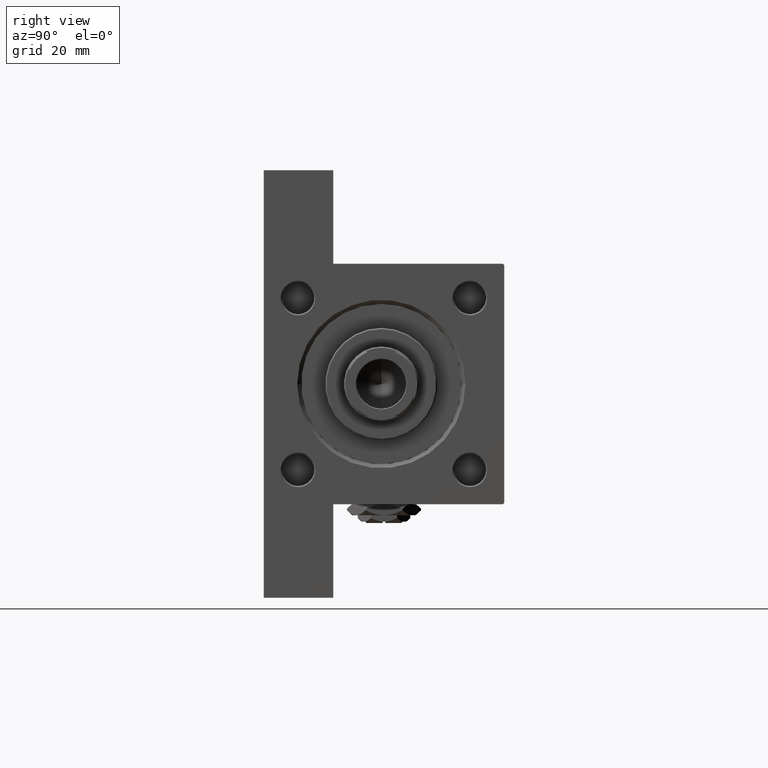
[diagram: clean part render]
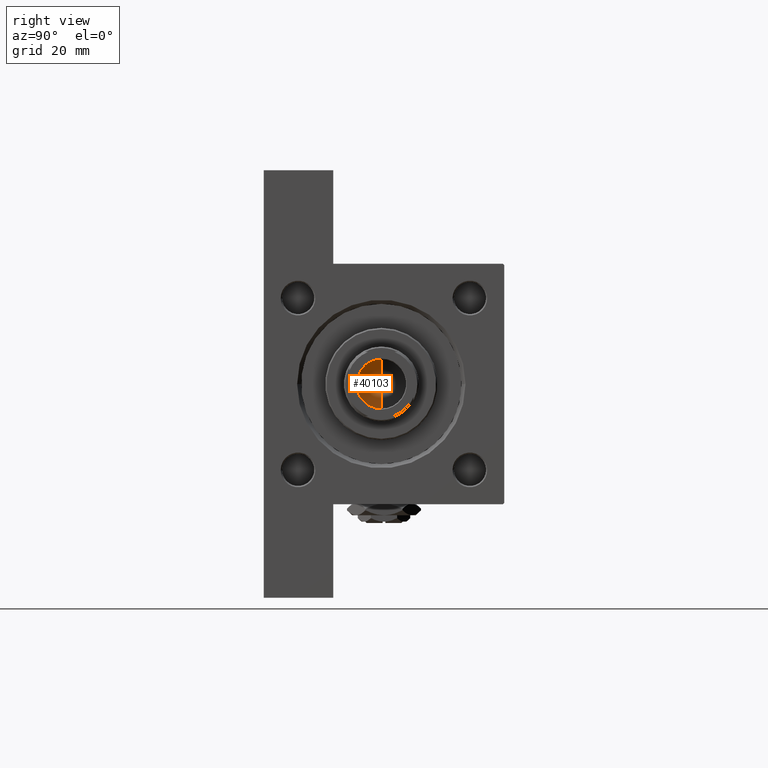
[diagram: same view with one face highlighted and labeled with its STEP entity id]
A machine part, right view. The second image highlights one B-rep face of the part: STEP entity #40103.
In plain terms, the highlighted conical surface has half-angle 59 deg.
Its self-contained STEP definition (entity closure, byte-faithful):
#253 = VERTEX_POINT ( 'NONE', #22689 ) ;
#841 = EDGE_LOOP ( 'NONE', ( #9426, #47730, #21593 ) ) ;
#1801 = CARTESIAN_POINT ( 'NONE',  ( -9.249999999999992895, 1.132798289211300712E-15, 114.9999999999999858 ) ) ;
#2208 = LINE ( 'NONE', #24585, #5716 ) ;
#5006 = VERTEX_POINT ( 'NONE', #33444 ) ;
#5716 = VECTOR ( 'NONE', #20791, 1000.000000000000000 ) ;
#9426 = ORIENTED_EDGE ( 'NONE', *, *, #34766, .F. ) ;
#11520 = AXIS2_PLACEMENT_3D ( 'NONE', #19722, #34828, #23502 ) ;
#13839 = LINE ( 'NONE', #1801, #43316 ) ;
#14890 = CARTESIAN_POINT ( 'NONE',  ( 9.249999999999992895, 0.000000000000000000, 114.9999999999999858 ) ) ;
#19722 = CARTESIAN_POINT ( 'NONE',  ( 0.000000000000000000, 0.000000000000000000, 114.9999999999999858 ) ) ;
#20791 = DIRECTION ( 'NONE',  ( 0.8571673007021117785, 0.000000000000000000, 0.5150380749100550437 ) ) ;
#21593 = ORIENTED_EDGE ( 'NONE', *, *, #23066, .T. ) ;
#22628 = AXIS2_PLACEMENT_3D ( 'NONE', #47116, #39814, #47601 ) ;
#22689 = CARTESIAN_POINT ( 'NONE',  ( -9.769621978240258809E-15, 0.000000000000000000, 109.4420392739950501 ) ) ;
#23066 = EDGE_CURVE ( 'NONE', #32372, #5006, #24358, .T. ) ;
#23502 = DIRECTION ( 'NONE',  ( 1.000000000000000000, 0.000000000000000000, 0.000000000000000000 ) ) ;
#24206 = FACE_OUTER_BOUND ( 'NONE', #841, .T. ) ;
#24358 = CIRCLE ( 'NONE', #11520, 9.249999999999992895 ) ;
#24585 = CARTESIAN_POINT ( 'NONE',  ( 9.249999999999992895, 0.000000000000000000, 114.9999999999999858 ) ) ;
#30633 = CONICAL_SURFACE ( 'NONE', #22628, 9.249999999999992895, 1.029744258676653423 ) ;
#32372 = VERTEX_POINT ( 'NONE', #14890 ) ;
#33444 = CARTESIAN_POINT ( 'NONE',  ( -9.249999999999992895, 1.132798289211300712E-15, 114.9999999999999858 ) ) ;
#34766 = EDGE_CURVE ( 'NONE', #253, #5006, #13839, .T. ) ;
#34828 = DIRECTION ( 'NONE',  ( -0.000000000000000000, -0.000000000000000000, 1.000000000000000000 ) ) ;
#39638 = EDGE_CURVE ( 'NONE', #253, #32372, #2208, .T. ) ;
#39814 = DIRECTION ( 'NONE',  ( -0.000000000000000000, -0.000000000000000000, 1.000000000000000000 ) ) ;
#40103 = ADVANCED_FACE ( 'NONE', ( #24206 ), #30633, .F. ) ;
#43316 = VECTOR ( 'NONE', #48303, 1000.000000000000000 ) ;
#47116 = CARTESIAN_POINT ( 'NONE',  ( 0.000000000000000000, 0.000000000000000000, 114.9999999999999858 ) ) ;
#47601 = DIRECTION ( 'NONE',  ( 1.000000000000000000, 0.000000000000000000, 0.000000000000000000 ) ) ;
#47730 = ORIENTED_EDGE ( 'NONE', *, *, #39638, .T. ) ;
#48303 = DIRECTION ( 'NONE',  ( -0.8571673007021117785, 1.049727191138617956E-16, 0.5150380749100550437 ) ) ;